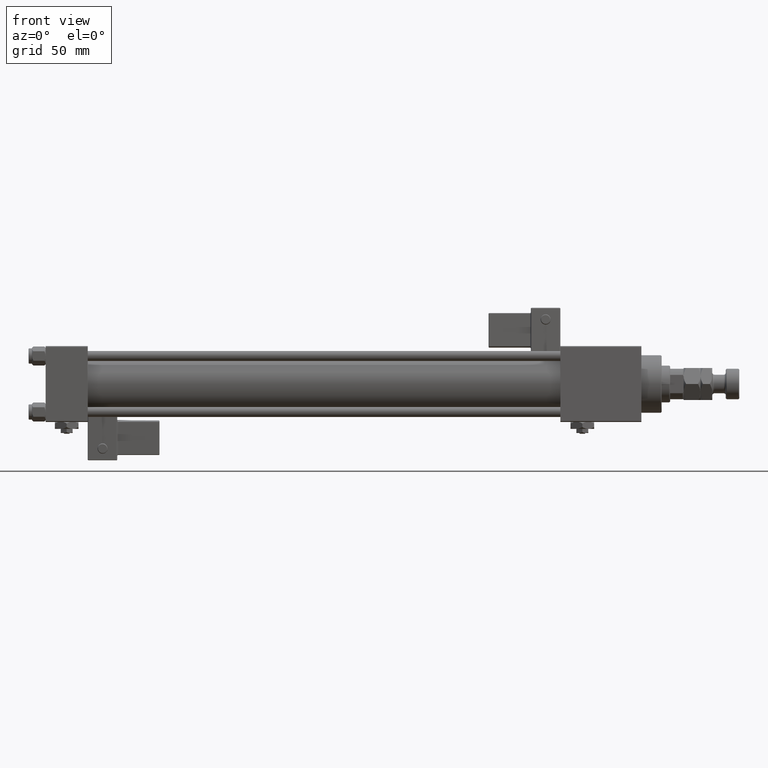
[diagram: clean part render]
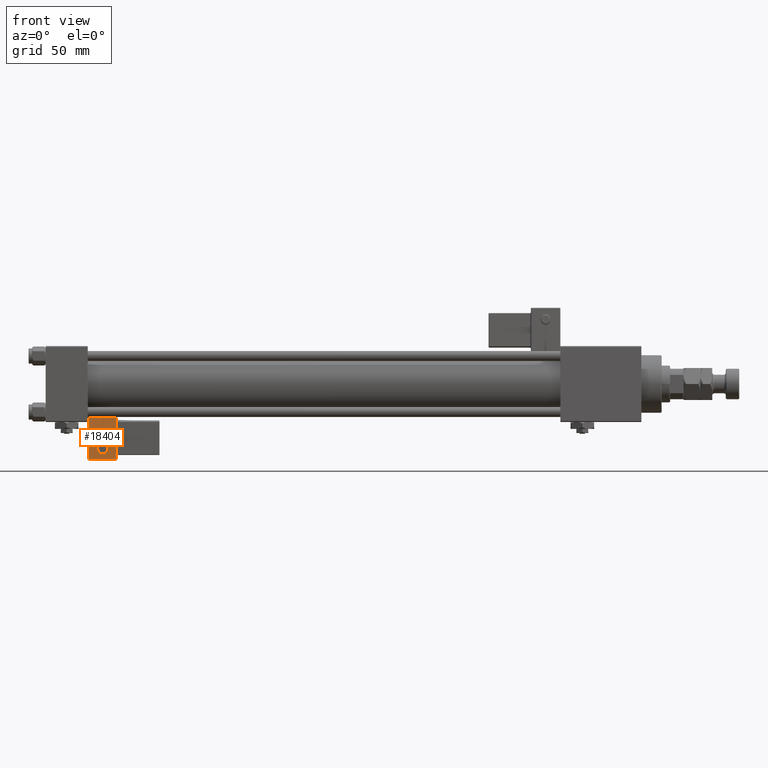
[diagram: same view with one face highlighted and labeled with its STEP entity id]
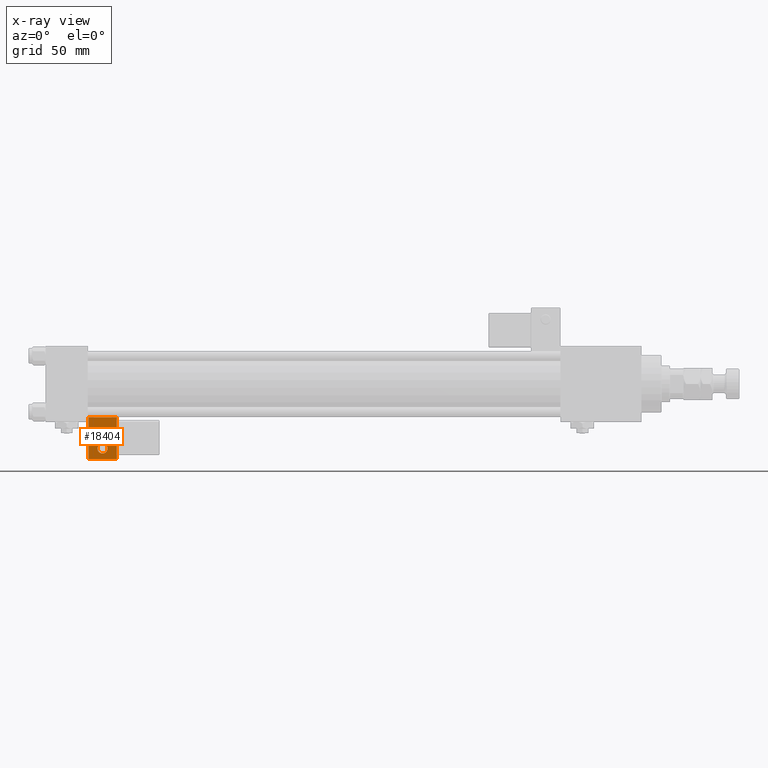
[diagram: x-ray of the same camera — body ghosted, the highlighted face saturated]
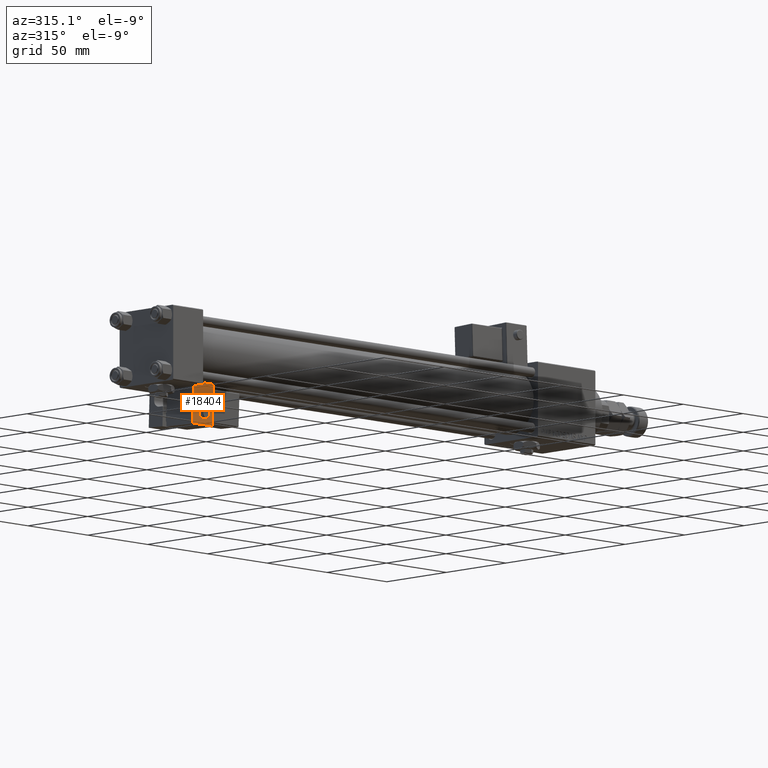
[diagram: same view with one face highlighted and labeled with its STEP entity id]
A machine part, front view. The second image highlights one B-rep face of the part: STEP entity #18404.
The next image is the same camera in x-ray: the body ghosted, the highlighted face saturated — about 0% of this face is hidden behind the body in this view.
A second angle (auxiliary view) of the same face is appended — the face is thin or edge-on in the first view.
In plain terms, the highlighted planar face has unit normal (0, 0.9994, 0.0353).
Its self-contained STEP definition (entity closure, byte-faithful):
#570 = DIRECTION ( 'NONE',  ( -1.334402673828313339E-16, 0.000000000000000000, 1.000000000000000000 ) ) ;
#4314 = EDGE_LOOP ( 'NONE', ( #40563, #45417, #28291, #19925 ) ) ;
#5164 = DIRECTION ( 'NONE',  ( -1.334402673828313093E-16, 0.000000000000000000, -1.000000000000000000 ) ) ;
#6434 = LINE ( 'NONE', #33411, #40960 ) ;
#8412 = VECTOR ( 'NONE', #53889, 1000.000000000000000 ) ;
#10203 = DIRECTION ( 'NONE',  ( 0.000000000000000000, 0.000000000000000000, 1.000000000000000000 ) ) ;
#11837 = VERTEX_POINT ( 'NONE', #12968 ) ;
#12968 = CARTESIAN_POINT ( 'NONE',  ( 8.250000000000003553, -33.75000000000000000, -0.5000000000000002220 ) ) ;
#13071 = CARTESIAN_POINT ( 'NONE',  ( -4.336808689942017736E-16, -33.75000000000000000, 9.000000000000001776 ) ) ;
#13647 = LINE ( 'NONE', #48053, #38471 ) ;
#13770 = VERTEX_POINT ( 'NONE', #17611 ) ;
#13985 = DIRECTION ( 'NONE',  ( 0.000000000000000000, 1.000000000000000000, 0.000000000000000000 ) ) ;
#14394 = EDGE_CURVE ( 'NONE', #13770, #36108, #6434, .T. ) ;
#14533 = FACE_OUTER_BOUND ( 'NONE', #4314, .T. ) ;
#14687 = CARTESIAN_POINT ( 'NONE',  ( -8.250000000000003553, -33.75000000000000000, -0.5000000000000002220 ) ) ;
#14851 = EDGE_CURVE ( 'NONE', #48416, #52428, #41858, .T. ) ;
#15098 = PLANE ( 'NONE',  #46448 ) ;
#17583 = CIRCLE ( 'NONE', #20348, 2.999999999999999112 ) ;
#17611 = CARTESIAN_POINT ( 'NONE',  ( 8.250000000000000000, -33.75000000000000000, 24.50000000000000000 ) ) ;
#17682 = LINE ( 'NONE', #44122, #36700 ) ;
#18404 = ADVANCED_FACE ( 'NONE', ( #14533, #32158 ), #15098, .F. ) ;
#19176 = LINE ( 'NONE', #49323, #8412 ) ;
#19925 = ORIENTED_EDGE ( 'NONE', *, *, #23922, .T. ) ;
#20348 = AXIS2_PLACEMENT_3D ( 'NONE', #32083, #39787, #10203 ) ;
#22793 = AXIS2_PLACEMENT_3D ( 'NONE', #30128, #25592, #51769 ) ;
#23396 = EDGE_CURVE ( 'NONE', #52428, #48416, #17583, .T. ) ;
#23922 = EDGE_CURVE ( 'NONE', #11837, #13770, #13647, .T. ) ;
#24329 = VERTEX_POINT ( 'NONE', #14687 ) ;
#25592 = DIRECTION ( 'NONE',  ( -0.000000000000000000, -1.000000000000000000, -0.000000000000000000 ) ) ;
#28269 = CARTESIAN_POINT ( 'NONE',  ( -6.628682924999581145E-17, -33.75000000000000000, 3.000000000000001776 ) ) ;
#28291 = ORIENTED_EDGE ( 'NONE', *, *, #38960, .T. ) ;
#30128 = CARTESIAN_POINT ( 'NONE',  ( -4.336808689942017736E-16, -33.75000000000000000, 6.000000000000001776 ) ) ;
#32083 = CARTESIAN_POINT ( 'NONE',  ( -4.336808689942017736E-16, -33.75000000000000000, 6.000000000000001776 ) ) ;
#32158 = FACE_BOUND ( 'NONE', #52953, .T. ) ;
#33411 = CARTESIAN_POINT ( 'NONE',  ( 4.857225732735059864E-15, -33.75000000000000000, 24.50000000000000000 ) ) ;
#36108 = VERTEX_POINT ( 'NONE', #38592 ) ;
#36700 = VECTOR ( 'NONE', #5164, 1000.000000000000000 ) ;
#38471 = VECTOR ( 'NONE', #570, 1000.000000000000000 ) ;
#38592 = CARTESIAN_POINT ( 'NONE',  ( -8.250000000000000000, -33.75000000000000000, 24.50000000000000355 ) ) ;
#38960 = EDGE_CURVE ( 'NONE', #24329, #11837, #19176, .T. ) ;
#39787 = DIRECTION ( 'NONE',  ( -0.000000000000000000, -1.000000000000000000, -0.000000000000000000 ) ) ;
#40563 = ORIENTED_EDGE ( 'NONE', *, *, #14394, .T. ) ;
#40960 = VECTOR ( 'NONE', #41387, 1000.000000000000000 ) ;
#41387 = DIRECTION ( 'NONE',  ( -1.000000000000000000, 0.000000000000000000, 1.982541115402065110E-16 ) ) ;
#41858 = CIRCLE ( 'NONE', #22793, 2.999999999999999112 ) ;
#42640 = EDGE_CURVE ( 'NONE', #36108, #24329, #17682, .T. ) ;
#44122 = CARTESIAN_POINT ( 'NONE',  ( -8.250000000000003553, -33.75000000000000000, 1.100882205908358788E-15 ) ) ;
#44415 = ORIENTED_EDGE ( 'NONE', *, *, #14851, .F. ) ;
#45417 = ORIENTED_EDGE ( 'NONE', *, *, #42640, .T. ) ;
#46448 = AXIS2_PLACEMENT_3D ( 'NONE', #49523, #13985, #49799 ) ;
#48053 = CARTESIAN_POINT ( 'NONE',  ( 8.250000000000003553, -33.75000000000000000, 1.100882205908358986E-15 ) ) ;
#48416 = VERTEX_POINT ( 'NONE', #28269 ) ;
#49323 = CARTESIAN_POINT ( 'NONE',  ( 0.000000000000000000, -33.75000000000000000, -0.5000000000000002220 ) ) ;
#49523 = CARTESIAN_POINT ( 'NONE',  ( 0.000000000000000000, -33.75000000000000000, 0.000000000000000000 ) ) ;
#49799 = DIRECTION ( 'NONE',  ( 0.000000000000000000, -0.000000000000000000, 1.000000000000000000 ) ) ;
#51769 = DIRECTION ( 'NONE',  ( 0.000000000000000000, 0.000000000000000000, 1.000000000000000000 ) ) ;
#52428 = VERTEX_POINT ( 'NONE', #13071 ) ;
#52781 = ORIENTED_EDGE ( 'NONE', *, *, #23396, .F. ) ;
#52953 = EDGE_LOOP ( 'NONE', ( #52781, #44415 ) ) ;
#53889 = DIRECTION ( 'NONE',  ( 1.000000000000000000, 0.000000000000000000, 0.000000000000000000 ) ) ;